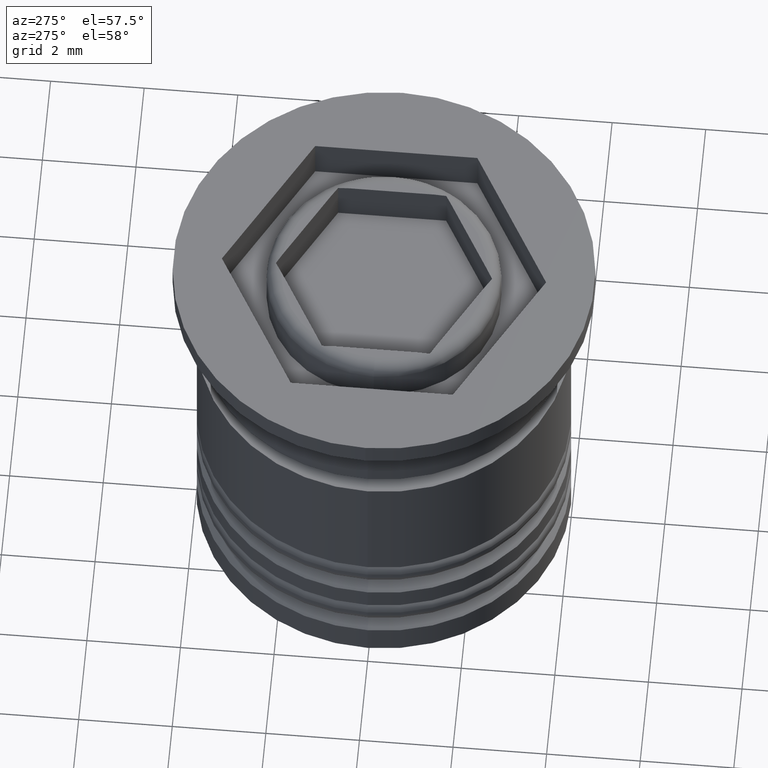
[diagram: clean part render]
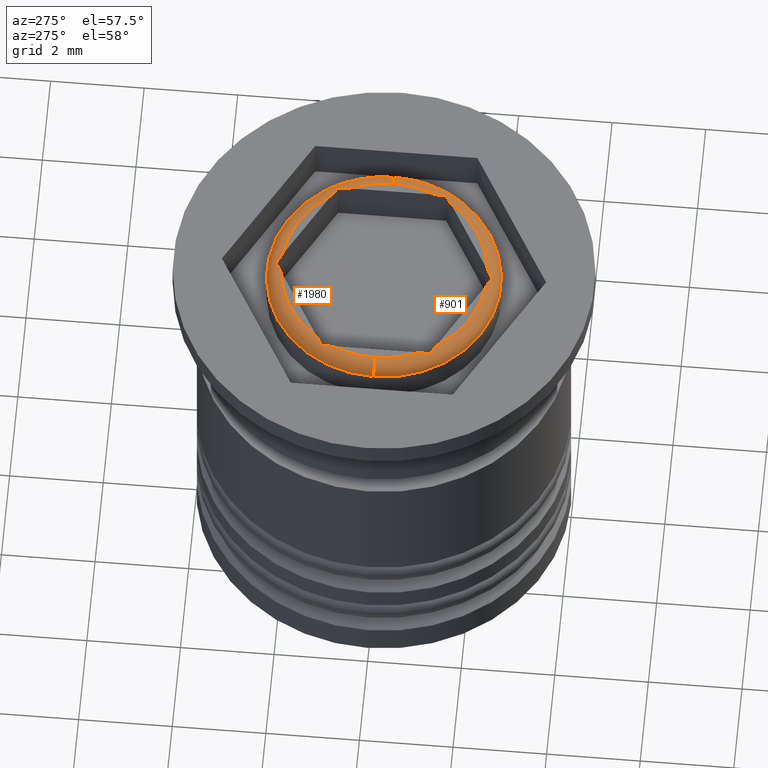
[diagram: same view with one multi-face feature highlighted, each face labeled with its STEP entity id]
A machine part, auxiliary view. The highlighted faces form ONE feature: a constant-radius fillet chain: 2 tangent blend faces with common blend radius 0.3 mm. The faces share edges in the B-rep.
Their STEP definitions:
[1] entity #901 (Torus):
#6 = VERTEX_POINT ( 'NONE', #228 ) ;
#7 = CARTESIAN_POINT ( 'NONE',  ( -0.1369991406722239902, -2.230304586012647139, 0.000000000000000000 ) ) ;
#30 = AXIS2_PLACEMENT_3D ( 'NONE', #965, #1766, #816 ) ;
#68 = FACE_OUTER_BOUND ( 'NONE', #449, .T. ) ;
#93 = CARTESIAN_POINT ( 'NONE',  ( -0.2062746066806217526, -2.190308377064462242, 0.000000000000000000 ) ) ;
#115 = VERTEX_POINT ( 'NONE', #662 ) ;
#130 = EDGE_CURVE ( 'NONE', #1378, #2004, #1824, .T. ) ;
#137 = CIRCLE ( 'NONE', #244, 0.2999999999999999334 ) ;
#147 = CARTESIAN_POINT ( 'NONE',  ( -1.931881487280481702, -1.194028780034662729, -0.005256474890640312932 ) ) ;
#168 = CARTESIAN_POINT ( 'NONE',  ( 0.000000000000000000, 0.000000000000000000, 0.000000000000000000 ) ) ;
#178 = CARTESIAN_POINT ( 'NONE',  ( 0.2062746066806211975, -2.190308377064462242, 0.000000000000000000 ) ) ;
#184 = CARTESIAN_POINT ( 'NONE',  ( 2.000000000000000000, -1.154700538379252128, -0.02065898188042571137 ) ) ;
#218 = DIRECTION ( 'NONE',  ( 1.000000000000000000, 0.000000000000000000, 0.000000000000000000 ) ) ;
#220 = VERTEX_POINT ( 'NONE', #1166 ) ;
#228 = CARTESIAN_POINT ( 'NONE',  ( 2.500000000000000444, 3.061616997868383634E-16, -0.2999999999999999334 ) ) ;
#229 = CARTESIAN_POINT ( 'NONE',  ( 0.000000000000000000, 0.000000000000000000, -0.2999999999999999334 ) ) ;
#244 = AXIS2_PLACEMENT_3D ( 'NONE', #1834, #1068, #1361 ) ;
#265 = VERTEX_POINT ( 'NONE', #1306 ) ;
#328 = DIRECTION ( 'NONE',  ( 1.224646799147353207E-16, 1.000000000000000000, 0.000000000000000000 ) ) ;
#330 = VERTEX_POINT ( 'NONE', #1546 ) ;
#348 = CARTESIAN_POINT ( 'NONE',  ( 2.000000000000000000, -1.076044055068429595, -0.005256474890640241808 ) ) ;
#372 = CIRCLE ( 'NONE', #30, 2.200000000000000622 ) ;
#379 = AXIS2_PLACEMENT_3D ( 'NONE', #890, #1657, #1037 ) ;
#384 = DIRECTION ( 'NONE',  ( 0.000000000000000000, 0.000000000000000000, -1.000000000000000000 ) ) ;
#388 = CARTESIAN_POINT ( 'NONE',  ( 0.000000000000000000, 0.000000000000000000, 0.000000000000000000 ) ) ;
#392 = CARTESIAN_POINT ( 'NONE',  ( 0.1369991406722237681, -2.230304586012647583, -3.386240097523933451E-18 ) ) ;
#394 = EDGE_CURVE ( 'NONE', #330, #1378, #1737, .T. ) ;
#448 = ORIENTED_EDGE ( 'NONE', *, *, #1632, .F. ) ;
#449 = EDGE_LOOP ( 'NONE', ( #1769, #1770, #1791, #1249, #1417, #1130, #1049, #448, #1957, #1577, #699, #1301, #1690 ) ) ;
#450 = EDGE_CURVE ( 'NONE', #1748, #1277, #1967, .T. ) ;
#517 = VERTEX_POINT ( 'NONE', #1044 ) ;
#522 = DIRECTION ( 'NONE',  ( -0.000000000000000000, -0.000000000000000000, 1.000000000000000000 ) ) ;
#536 = B_SPLINE_CURVE_WITH_KNOTS ( 'NONE', 3,
 ( #2022, #147, #655, #1887 ),
 .UNSPECIFIED., .F., .F.,
 ( 4, 4 ),
 ( 3.388131789017200980E-21, 0.0002390796478456416675 ),
 .UNSPECIFIED. ) ;
#560 = B_SPLINE_CURVE_WITH_KNOTS ( 'NONE', 3,
 ( #1448, #1758, #392, #178 ),
 .UNSPECIFIED., .F., .F.,
 ( 4, 4 ),
 ( 1.212469994430350721E-20, 0.0002390796478456412881 ),
 .UNSPECIFIED. ) ;
#572 = EDGE_CURVE ( 'NONE', #265, #976, #536, .T. ) ;
#655 = CARTESIAN_POINT ( 'NONE',  ( -1.863000859327776260, -1.233797029125107469, 7.434342767888522002E-18 ) ) ;
#661 = CARTESIAN_POINT ( 'NONE',  ( -2.000000000000000444, -0.9165151389911687652, 0.000000000000000000 ) ) ;
#662 = CARTESIAN_POINT ( 'NONE',  ( -2.000000000000000444, -0.9165151389911687652, 0.000000000000000000 ) ) ;
#664 = CARTESIAN_POINT ( 'NONE',  ( 1.863000859327775816, -1.233797029125107469, 0.000000000000000000 ) ) ;
#699 = ORIENTED_EDGE ( 'NONE', *, *, #572, .F. ) ;
#708 = CIRCLE ( 'NONE', #1913, 2.200000000000000622 ) ;
#720 = CARTESIAN_POINT ( 'NONE',  ( -2.200000000000000622, 2.877919977996280320E-16, 0.000000000000000000 ) ) ;
#741 = AXIS2_PLACEMENT_3D ( 'NONE', #229, #745, #1826 ) ;
#745 = DIRECTION ( 'NONE',  ( -0.000000000000000000, -0.000000000000000000, 1.000000000000000000 ) ) ;
#750 = VERTEX_POINT ( 'NONE', #1538 ) ;
#800 = B_SPLINE_CURVE_WITH_KNOTS ( 'NONE', 3,
 ( #1744, #348, #975, #1583 ),
 .UNSPECIFIED., .F., .F.,
 ( 4, 4 ),
 ( 0.000000000000000000, 0.0002390796478456419115 ),
 .UNSPECIFIED. ) ;
#815 = EDGE_CURVE ( 'NONE', #517, #1979, #872, .T. ) ;
#816 = DIRECTION ( 'NONE',  ( 1.000000000000000000, 0.000000000000000000, 0.000000000000000000 ) ) ;
#854 = CARTESIAN_POINT ( 'NONE',  ( -2.000000000000000444, -1.076044055068429151, -0.005256474890640312932 ) ) ;
#864 = EDGE_CURVE ( 'NONE', #976, #1748, #372, .T. ) ;
#872 = CIRCLE ( 'NONE', #1310, 0.2999999999999999334 ) ;
#890 = CARTESIAN_POINT ( 'NONE',  ( 0.000000000000000000, 0.000000000000000000, 0.000000000000000000 ) ) ;
#894 = CARTESIAN_POINT ( 'NONE',  ( -2.168404344971008868E-16, -2.309401076758503368, -0.02065898188042571137 ) ) ;
#901 = ADVANCED_FACE ( 'NONE', ( #68 ), #1601, .T. ) ;
#940 = CIRCLE ( 'NONE', #379, 2.200000000000000622 ) ;
#965 = CARTESIAN_POINT ( 'NONE',  ( 0.000000000000000000, 0.000000000000000000, 0.000000000000000000 ) ) ;
#975 = CARTESIAN_POINT ( 'NONE',  ( 2.000000000000000000, -0.9965075568875400025, 3.123516711406614449E-17 ) ) ;
#976 = VERTEX_POINT ( 'NONE', #1899 ) ;
#980 = DIRECTION ( 'NONE',  ( 1.000000000000000000, 0.000000000000000000, 0.000000000000000000 ) ) ;
#991 = B_SPLINE_CURVE_WITH_KNOTS ( 'NONE', 3,
 ( #661, #1619, #854, #1451 ),
 .UNSPECIFIED., .F., .F.,
 ( 4, 4 ),
 ( 0.000000000000000000, 0.0002390796478456422638 ),
 .UNSPECIFIED. ) ;
#1037 = DIRECTION ( 'NONE',  ( 1.000000000000000000, 0.000000000000000000, 0.000000000000000000 ) ) ;
#1044 = CARTESIAN_POINT ( 'NONE',  ( -2.500000000000000444, 0.000000000000000000, -0.2999999999999999334 ) ) ;
#1049 = ORIENTED_EDGE ( 'NONE', *, *, #394, .F. ) ;
#1057 = AXIS2_PLACEMENT_3D ( 'NONE', #1264, #384, #1279 ) ;
#1068 = DIRECTION ( 'NONE',  ( 0.000000000000000000, -1.000000000000000000, 0.000000000000000000 ) ) ;
#1091 = CARTESIAN_POINT ( 'NONE',  ( -0.06811851271951903375, -2.270072835103092324, -0.005256474890640238339 ) ) ;
#1114 = CARTESIAN_POINT ( 'NONE',  ( -0.2062746066806217526, -2.190308377064462242, 0.000000000000000000 ) ) ;
#1130 = ORIENTED_EDGE ( 'NONE', *, *, #130, .F. ) ;
#1166 = CARTESIAN_POINT ( 'NONE',  ( 2.200000000000000622, 0.000000000000000000, 0.000000000000000000 ) ) ;
#1196 = EDGE_CURVE ( 'NONE', #2004, #750, #800, .T. ) ;
#1249 = ORIENTED_EDGE ( 'NONE', *, *, #1859, .F. ) ;
#1264 = CARTESIAN_POINT ( 'NONE',  ( 0.000000000000000000, 0.000000000000000000, -0.2999999999999999334 ) ) ;
#1277 = VERTEX_POINT ( 'NONE', #894 ) ;
#1279 = DIRECTION ( 'NONE',  ( 1.000000000000000000, 0.000000000000000000, 0.000000000000000000 ) ) ;
#1285 = CARTESIAN_POINT ( 'NONE',  ( 1.931881487280481258, -1.194028780034663173, -0.005256474890640258288 ) ) ;
#1301 = ORIENTED_EDGE ( 'NONE', *, *, #1357, .F. ) ;
#1306 = CARTESIAN_POINT ( 'NONE',  ( -2.000000000000000444, -1.154700538379251684, -0.02065898188042571137 ) ) ;
#1310 = AXIS2_PLACEMENT_3D ( 'NONE', #1845, #328, #1879 ) ;
#1335 = AXIS2_PLACEMENT_3D ( 'NONE', #168, #522, #980 ) ;
#1357 = EDGE_CURVE ( 'NONE', #115, #265, #991, .T. ) ;
#1361 = DIRECTION ( 'NONE',  ( 0.000000000000000000, 0.000000000000000000, -1.000000000000000000 ) ) ;
#1378 = VERTEX_POINT ( 'NONE', #1820 ) ;
#1417 = ORIENTED_EDGE ( 'NONE', *, *, #1196, .F. ) ;
#1448 = CARTESIAN_POINT ( 'NONE',  ( -2.168404344971008868E-16, -2.309401076758503368, -0.02065898188042571137 ) ) ;
#1451 = CARTESIAN_POINT ( 'NONE',  ( -2.000000000000000444, -1.154700538379251684, -0.02065898188042571137 ) ) ;
#1538 = CARTESIAN_POINT ( 'NONE',  ( 2.000000000000000000, -0.9165151389911695423, 0.000000000000000000 ) ) ;
#1546 = CARTESIAN_POINT ( 'NONE',  ( 0.2062746066806211975, -2.190308377064462242, 0.000000000000000000 ) ) ;
#1577 = ORIENTED_EDGE ( 'NONE', *, *, #864, .F. ) ;
#1583 = CARTESIAN_POINT ( 'NONE',  ( 2.000000000000000000, -0.9165151389911695423, 0.000000000000000000 ) ) ;
#1600 = CARTESIAN_POINT ( 'NONE',  ( 1.793725393319378192, -1.273793238073292811, 0.000000000000000000 ) ) ;
#1601 = TOROIDAL_SURFACE ( 'NONE', #741, 2.200000000000000622, 0.2999999999999999889 ) ;
#1613 = DIRECTION ( 'NONE',  ( -0.000000000000000000, -0.000000000000000000, 1.000000000000000000 ) ) ;
#1619 = CARTESIAN_POINT ( 'NONE',  ( -2.000000000000000444, -0.9965075568875393364, 0.000000000000000000 ) ) ;
#1632 = EDGE_CURVE ( 'NONE', #1277, #330, #560, .T. ) ;
#1657 = DIRECTION ( 'NONE',  ( -0.000000000000000000, -0.000000000000000000, 1.000000000000000000 ) ) ;
#1690 = ORIENTED_EDGE ( 'NONE', *, *, #1752, .F. ) ;
#1712 = EDGE_CURVE ( 'NONE', #6, #517, #1945, .T. ) ;
#1719 = CARTESIAN_POINT ( 'NONE',  ( -2.168404344971008868E-16, -2.309401076758503368, -0.02065898188042571137 ) ) ;
#1737 = CIRCLE ( 'NONE', #1335, 2.200000000000000622 ) ;
#1744 = CARTESIAN_POINT ( 'NONE',  ( 2.000000000000000000, -1.154700538379252128, -0.02065898188042571137 ) ) ;
#1748 = VERTEX_POINT ( 'NONE', #93 ) ;
#1752 = EDGE_CURVE ( 'NONE', #1979, #115, #940, .T. ) ;
#1756 = CARTESIAN_POINT ( 'NONE',  ( 2.000000000000000000, -1.154700538379252128, -0.02065898188042571137 ) ) ;
#1758 = CARTESIAN_POINT ( 'NONE',  ( 0.06811851271951849252, -2.270072835103092324, -0.005256474890640268696 ) ) ;
#1766 = DIRECTION ( 'NONE',  ( -0.000000000000000000, -0.000000000000000000, 1.000000000000000000 ) ) ;
#1769 = ORIENTED_EDGE ( 'NONE', *, *, #815, .F. ) ;
#1770 = ORIENTED_EDGE ( 'NONE', *, *, #1712, .F. ) ;
#1791 = ORIENTED_EDGE ( 'NONE', *, *, #1953, .T. ) ;
#1820 = CARTESIAN_POINT ( 'NONE',  ( 1.793725393319378192, -1.273793238073292811, 0.000000000000000000 ) ) ;
#1824 = B_SPLINE_CURVE_WITH_KNOTS ( 'NONE', 3,
 ( #1600, #664, #1285, #1756 ),
 .UNSPECIFIED., .F., .F.,
 ( 4, 4 ),
 ( 9.333598368916043247E-21, 0.0002390796478456414507 ),
 .UNSPECIFIED. ) ;
#1826 = DIRECTION ( 'NONE',  ( 1.000000000000000000, 0.000000000000000000, 0.000000000000000000 ) ) ;
#1834 = CARTESIAN_POINT ( 'NONE',  ( 2.200000000000000622, 0.000000000000000000, -0.2999999999999999334 ) ) ;
#1845 = CARTESIAN_POINT ( 'NONE',  ( -2.200000000000000622, 2.694222958124177500E-16, -0.2999999999999999334 ) ) ;
#1859 = EDGE_CURVE ( 'NONE', #750, #220, #708, .T. ) ;
#1879 = DIRECTION ( 'NONE',  ( -1.000000000000000000, 1.224646799147353207E-16, 0.000000000000000000 ) ) ;
#1887 = CARTESIAN_POINT ( 'NONE',  ( -1.793725393319378636, -1.273793238073292589, 0.000000000000000000 ) ) ;
#1899 = CARTESIAN_POINT ( 'NONE',  ( -1.793725393319378636, -1.273793238073292589, 0.000000000000000000 ) ) ;
#1913 = AXIS2_PLACEMENT_3D ( 'NONE', #388, #1613, #218 ) ;
#1945 = CIRCLE ( 'NONE', #1057, 2.500000000000000444 ) ;
#1953 = EDGE_CURVE ( 'NONE', #6, #220, #137, .T. ) ;
#1957 = ORIENTED_EDGE ( 'NONE', *, *, #450, .F. ) ;
#1967 = B_SPLINE_CURVE_WITH_KNOTS ( 'NONE', 3,
 ( #1114, #7, #1091, #1719 ),
 .UNSPECIFIED., .F., .F.,
 ( 4, 4 ),
 ( 2.722018774469122024E-20, 0.0002390796478456413423 ),
 .UNSPECIFIED. ) ;
#1979 = VERTEX_POINT ( 'NONE', #720 ) ;
#2004 = VERTEX_POINT ( 'NONE', #184 ) ;
#2022 = CARTESIAN_POINT ( 'NONE',  ( -2.000000000000000444, -1.154700538379251684, -0.02065898188042571137 ) ) ;
[2] entity #1980 (Torus):
#6 = VERTEX_POINT ( 'NONE', #228 ) ;
#44 = B_SPLINE_CURVE_WITH_KNOTS ( 'NONE', 3,
 ( #1937, #652, #343, #873 ),
 .UNSPECIFIED., .F., .F.,
 ( 4, 4 ),
 ( 2.996442637876366042E-19, 0.0002390796478456412068 ),
 .UNSPECIFIED. ) ;
#45 = CARTESIAN_POINT ( 'NONE',  ( -0.1369991406722239902, 2.230304586012647583, 2.874465159271312722E-18 ) ) ;
#53 = ORIENTED_EDGE ( 'NONE', *, *, #686, .F. ) ;
#66 = CIRCLE ( 'NONE', #1436, 2.200000000000000622 ) ;
#70 = AXIS2_PLACEMENT_3D ( 'NONE', #465, #1275, #516 ) ;
#78 = B_SPLINE_CURVE_WITH_KNOTS ( 'NONE', 3,
 ( #1925, #691, #1440, #839 ),
 .UNSPECIFIED., .F., .F.,
 ( 4, 4 ),
 ( 3.388131789017201356E-21, 0.0002390796478456426433 ),
 .UNSPECIFIED. ) ;
#94 = VERTEX_POINT ( 'NONE', #767 ) ;
#124 = B_SPLINE_CURVE_WITH_KNOTS ( 'NONE', 3,
 ( #1036, #889, #45, #690 ),
 .UNSPECIFIED., .F., .F.,
 ( 4, 4 ),
 ( 1.212469994430350270E-20, 0.0002390796478456412881 ),
 .UNSPECIFIED. ) ;
#137 = CIRCLE ( 'NONE', #244, 0.2999999999999999334 ) ;
#156 = DIRECTION ( 'NONE',  ( 1.000000000000000000, 0.000000000000000000, 0.000000000000000000 ) ) ;
#207 = CARTESIAN_POINT ( 'NONE',  ( -2.000000000000000444, 0.9165151389911687652, 0.000000000000000000 ) ) ;
#220 = VERTEX_POINT ( 'NONE', #1166 ) ;
#228 = CARTESIAN_POINT ( 'NONE',  ( 2.500000000000000444, 3.061616997868383634E-16, -0.2999999999999999334 ) ) ;
#233 = VERTEX_POINT ( 'NONE', #1645 ) ;
#237 = CIRCLE ( 'NONE', #1940, 2.500000000000000444 ) ;
#244 = AXIS2_PLACEMENT_3D ( 'NONE', #1834, #1068, #1361 ) ;
#251 = VERTEX_POINT ( 'NONE', #1042 ) ;
#267 = FACE_OUTER_BOUND ( 'NONE', #1441, .T. ) ;
#301 = CARTESIAN_POINT ( 'NONE',  ( 0.2062746066806217526, 2.190308377064462242, 0.000000000000000000 ) ) ;
#320 = VERTEX_POINT ( 'NONE', #301 ) ;
#328 = DIRECTION ( 'NONE',  ( 1.224646799147353207E-16, 1.000000000000000000, 0.000000000000000000 ) ) ;
#343 = CARTESIAN_POINT ( 'NONE',  ( 0.06811851271951854803, 2.270072835103092324, -0.005256474890640251349 ) ) ;
#414 = CARTESIAN_POINT ( 'NONE',  ( -2.000000000000000444, 1.154700538379251462, -0.02065898188042571137 ) ) ;
#456 = VERTEX_POINT ( 'NONE', #797 ) ;
#465 = CARTESIAN_POINT ( 'NONE',  ( 0.000000000000000000, 0.000000000000000000, 0.000000000000000000 ) ) ;
#494 = ORIENTED_EDGE ( 'NONE', *, *, #798, .F. ) ;
#516 = DIRECTION ( 'NONE',  ( 1.000000000000000000, 0.000000000000000000, 0.000000000000000000 ) ) ;
#517 = VERTEX_POINT ( 'NONE', #1044 ) ;
#519 = CARTESIAN_POINT ( 'NONE',  ( 2.000000000000000888, 1.076044055068428928, -0.005256474890640319003 ) ) ;
#542 = VERTEX_POINT ( 'NONE', #1160 ) ;
#557 = CARTESIAN_POINT ( 'NONE',  ( 2.000000000000000888, 0.9165151389911680990, 0.000000000000000000 ) ) ;
#564 = DIRECTION ( 'NONE',  ( -0.000000000000000000, -0.000000000000000000, 1.000000000000000000 ) ) ;
#652 = CARTESIAN_POINT ( 'NONE',  ( 0.1369991406722236571, 2.230304586012647139, 0.000000000000000000 ) ) ;
#677 = AXIS2_PLACEMENT_3D ( 'NONE', #1325, #564, #902 ) ;
#686 = EDGE_CURVE ( 'NONE', #251, #542, #998, .T. ) ;
#690 = CARTESIAN_POINT ( 'NONE',  ( -0.2062746066806214196, 2.190308377064462242, 0.000000000000000000 ) ) ;
#691 = CARTESIAN_POINT ( 'NONE',  ( 1.931881487280481924, 1.194028780034662951, -0.005256474890640377116 ) ) ;
#720 = CARTESIAN_POINT ( 'NONE',  ( -2.200000000000000622, 2.877919977996280320E-16, 0.000000000000000000 ) ) ;
#751 = EDGE_CURVE ( 'NONE', #1345, #1979, #1705, .T. ) ;
#755 = CARTESIAN_POINT ( 'NONE',  ( -2.000000000000000444, 1.076044055068428928, -0.005256474890640217522 ) ) ;
#756 = DIRECTION ( 'NONE',  ( 1.000000000000000000, 0.000000000000000000, 0.000000000000000000 ) ) ;
#767 = CARTESIAN_POINT ( 'NONE',  ( 1.793725393319377970, 1.273793238073292589, 0.000000000000000000 ) ) ;
#774 = DIRECTION ( 'NONE',  ( -0.000000000000000000, -0.000000000000000000, 1.000000000000000000 ) ) ;
#797 = CARTESIAN_POINT ( 'NONE',  ( 0.000000000000000000, 2.309401076758503368, -0.02065898188042571137 ) ) ;
#798 = EDGE_CURVE ( 'NONE', #517, #6, #237, .T. ) ;
#815 = EDGE_CURVE ( 'NONE', #517, #1979, #872, .T. ) ;
#838 = AXIS2_PLACEMENT_3D ( 'NONE', #1713, #774, #1060 ) ;
#839 = CARTESIAN_POINT ( 'NONE',  ( 1.793725393319377970, 1.273793238073292589, 0.000000000000000000 ) ) ;
#872 = CIRCLE ( 'NONE', #1310, 0.2999999999999999334 ) ;
#873 = CARTESIAN_POINT ( 'NONE',  ( 0.000000000000000000, 2.309401076758503368, -0.02065898188042571137 ) ) ;
#889 = CARTESIAN_POINT ( 'NONE',  ( -0.06811851271951871456, 2.270072835103092324, -0.005256474890640268696 ) ) ;
#902 = DIRECTION ( 'NONE',  ( 1.000000000000000000, 0.000000000000000000, 0.000000000000000000 ) ) ;
#954 = DIRECTION ( 'NONE',  ( -0.000000000000000000, -0.000000000000000000, 1.000000000000000000 ) ) ;
#997 = ORIENTED_EDGE ( 'NONE', *, *, #1646, .F. ) ;
#998 = B_SPLINE_CURVE_WITH_KNOTS ( 'NONE', 3,
 ( #1639, #1626, #1045, #414 ),
 .UNSPECIFIED., .F., .F.,
 ( 4, 4 ),
 ( 2.174422272890622232E-19, 0.0002390796478456415591 ),
 .UNSPECIFIED. ) ;
#1009 = CARTESIAN_POINT ( 'NONE',  ( -0.2062746066806214196, 2.190308377064462242, 0.000000000000000000 ) ) ;
#1036 = CARTESIAN_POINT ( 'NONE',  ( 0.000000000000000000, 2.309401076758503368, -0.02065898188042571137 ) ) ;
#1042 = CARTESIAN_POINT ( 'NONE',  ( -1.793725393319378858, 1.273793238073292589, 0.000000000000000000 ) ) ;
#1044 = CARTESIAN_POINT ( 'NONE',  ( -2.500000000000000444, 0.000000000000000000, -0.2999999999999999334 ) ) ;
#1045 = CARTESIAN_POINT ( 'NONE',  ( -1.931881487280481702, 1.194028780034662729, -0.005256474890640332881 ) ) ;
#1060 = DIRECTION ( 'NONE',  ( 1.000000000000000000, 0.000000000000000000, 0.000000000000000000 ) ) ;
#1068 = DIRECTION ( 'NONE',  ( 0.000000000000000000, -1.000000000000000000, 0.000000000000000000 ) ) ;
#1072 = EDGE_CURVE ( 'NONE', #94, #320, #66, .T. ) ;
#1073 = CARTESIAN_POINT ( 'NONE',  ( 0.000000000000000000, 0.000000000000000000, 0.000000000000000000 ) ) ;
#1085 = CARTESIAN_POINT ( 'NONE',  ( 0.000000000000000000, 0.000000000000000000, 0.000000000000000000 ) ) ;
#1121 = CARTESIAN_POINT ( 'NONE',  ( 2.000000000000000888, 0.9965075568875386702, -5.781863551040906149E-17 ) ) ;
#1160 = CARTESIAN_POINT ( 'NONE',  ( -2.000000000000000444, 1.154700538379251462, -0.02065898188042571137 ) ) ;
#1164 = ORIENTED_EDGE ( 'NONE', *, *, #1659, .F. ) ;
#1166 = CARTESIAN_POINT ( 'NONE',  ( 2.200000000000000622, 0.000000000000000000, 0.000000000000000000 ) ) ;
#1184 = ORIENTED_EDGE ( 'NONE', *, *, #815, .T. ) ;
#1212 = CIRCLE ( 'NONE', #70, 2.200000000000000622 ) ;
#1263 = ORIENTED_EDGE ( 'NONE', *, *, #1506, .F. ) ;
#1275 = DIRECTION ( 'NONE',  ( -0.000000000000000000, -0.000000000000000000, 1.000000000000000000 ) ) ;
#1296 = B_SPLINE_CURVE_WITH_KNOTS ( 'NONE', 3,
 ( #1671, #755, #1932, #207 ),
 .UNSPECIFIED., .F., .F.,
 ( 4, 4 ),
 ( 0.000000000000000000, 0.0002390796478456420199 ),
 .UNSPECIFIED. ) ;
#1310 = AXIS2_PLACEMENT_3D ( 'NONE', #1845, #328, #1879 ) ;
#1315 = ORIENTED_EDGE ( 'NONE', *, *, #1072, .F. ) ;
#1325 = CARTESIAN_POINT ( 'NONE',  ( 0.000000000000000000, 0.000000000000000000, -0.2999999999999999334 ) ) ;
#1344 = TOROIDAL_SURFACE ( 'NONE', #677, 2.200000000000000622, 0.2999999999999999889 ) ;
#1345 = VERTEX_POINT ( 'NONE', #1843 ) ;
#1353 = ORIENTED_EDGE ( 'NONE', *, *, #1953, .F. ) ;
#1359 = EDGE_CURVE ( 'NONE', #320, #456, #44, .T. ) ;
#1360 = DIRECTION ( 'NONE',  ( 1.000000000000000000, 0.000000000000000000, 0.000000000000000000 ) ) ;
#1361 = DIRECTION ( 'NONE',  ( 0.000000000000000000, 0.000000000000000000, -1.000000000000000000 ) ) ;
#1408 = ORIENTED_EDGE ( 'NONE', *, *, #1359, .F. ) ;
#1418 = ORIENTED_EDGE ( 'NONE', *, *, #751, .F. ) ;
#1436 = AXIS2_PLACEMENT_3D ( 'NONE', #1073, #954, #156 ) ;
#1440 = CARTESIAN_POINT ( 'NONE',  ( 1.863000859327776260, 1.233797029125107692, 2.956739694495964183E-17 ) ) ;
#1441 = EDGE_LOOP ( 'NONE', ( #494, #1184, #1418, #1736, #53, #1617, #1263, #1408, #1315, #1164, #997, #1946, #1353 ) ) ;
#1506 = EDGE_CURVE ( 'NONE', #456, #1682, #124, .T. ) ;
#1509 = AXIS2_PLACEMENT_3D ( 'NONE', #1085, #1550, #756 ) ;
#1518 = CARTESIAN_POINT ( 'NONE',  ( 0.000000000000000000, 0.000000000000000000, -0.2999999999999999334 ) ) ;
#1550 = DIRECTION ( 'NONE',  ( -0.000000000000000000, -0.000000000000000000, 1.000000000000000000 ) ) ;
#1595 = CARTESIAN_POINT ( 'NONE',  ( 2.000000000000000888, 1.154700538379251684, -0.02065898188042657874 ) ) ;
#1617 = ORIENTED_EDGE ( 'NONE', *, *, #2035, .F. ) ;
#1626 = CARTESIAN_POINT ( 'NONE',  ( -1.863000859327776260, 1.233797029125107247, -7.123549657312952816E-17 ) ) ;
#1639 = CARTESIAN_POINT ( 'NONE',  ( -1.793725393319378858, 1.273793238073292589, 0.000000000000000000 ) ) ;
#1645 = CARTESIAN_POINT ( 'NONE',  ( 2.000000000000000888, 0.9165151389911680990, 0.000000000000000000 ) ) ;
#1646 = EDGE_CURVE ( 'NONE', #233, #1718, #1666, .T. ) ;
#1659 = EDGE_CURVE ( 'NONE', #1718, #94, #78, .T. ) ;
#1666 = B_SPLINE_CURVE_WITH_KNOTS ( 'NONE', 3,
 ( #557, #1121, #519, #1595 ),
 .UNSPECIFIED., .F., .F.,
 ( 4, 4 ),
 ( 1.088212275557260522E-19, 0.0002390796478456430499 ),
 .UNSPECIFIED. ) ;
#1671 = CARTESIAN_POINT ( 'NONE',  ( -2.000000000000000444, 1.154700538379251462, -0.02065898188042571137 ) ) ;
#1682 = VERTEX_POINT ( 'NONE', #1009 ) ;
#1705 = CIRCLE ( 'NONE', #838, 2.200000000000000622 ) ;
#1713 = CARTESIAN_POINT ( 'NONE',  ( 0.000000000000000000, 0.000000000000000000, 0.000000000000000000 ) ) ;
#1718 = VERTEX_POINT ( 'NONE', #1902 ) ;
#1720 = DIRECTION ( 'NONE',  ( 0.000000000000000000, 0.000000000000000000, -1.000000000000000000 ) ) ;
#1736 = ORIENTED_EDGE ( 'NONE', *, *, #1802, .F. ) ;
#1802 = EDGE_CURVE ( 'NONE', #542, #1345, #1296, .T. ) ;
#1834 = CARTESIAN_POINT ( 'NONE',  ( 2.200000000000000622, 0.000000000000000000, -0.2999999999999999334 ) ) ;
#1843 = CARTESIAN_POINT ( 'NONE',  ( -2.000000000000000444, 0.9165151389911687652, 0.000000000000000000 ) ) ;
#1845 = CARTESIAN_POINT ( 'NONE',  ( -2.200000000000000622, 2.694222958124177500E-16, -0.2999999999999999334 ) ) ;
#1876 = EDGE_CURVE ( 'NONE', #220, #233, #1877, .T. ) ;
#1877 = CIRCLE ( 'NONE', #1509, 2.200000000000000622 ) ;
#1879 = DIRECTION ( 'NONE',  ( -1.000000000000000000, 1.224646799147353207E-16, 0.000000000000000000 ) ) ;
#1902 = CARTESIAN_POINT ( 'NONE',  ( 2.000000000000000888, 1.154700538379251684, -0.02065898188042657874 ) ) ;
#1925 = CARTESIAN_POINT ( 'NONE',  ( 2.000000000000000888, 1.154700538379251684, -0.02065898188042657874 ) ) ;
#1932 = CARTESIAN_POINT ( 'NONE',  ( -2.000000000000000444, 0.9965075568875391143, 3.123516711406614449E-17 ) ) ;
#1937 = CARTESIAN_POINT ( 'NONE',  ( 0.2062746066806217526, 2.190308377064462242, 0.000000000000000000 ) ) ;
#1940 = AXIS2_PLACEMENT_3D ( 'NONE', #1518, #1720, #1360 ) ;
#1946 = ORIENTED_EDGE ( 'NONE', *, *, #1876, .F. ) ;
#1953 = EDGE_CURVE ( 'NONE', #6, #220, #137, .T. ) ;
#1979 = VERTEX_POINT ( 'NONE', #720 ) ;
#1980 = ADVANCED_FACE ( 'NONE', ( #267 ), #1344, .T. ) ;
#2035 = EDGE_CURVE ( 'NONE', #1682, #251, #1212, .T. ) ;